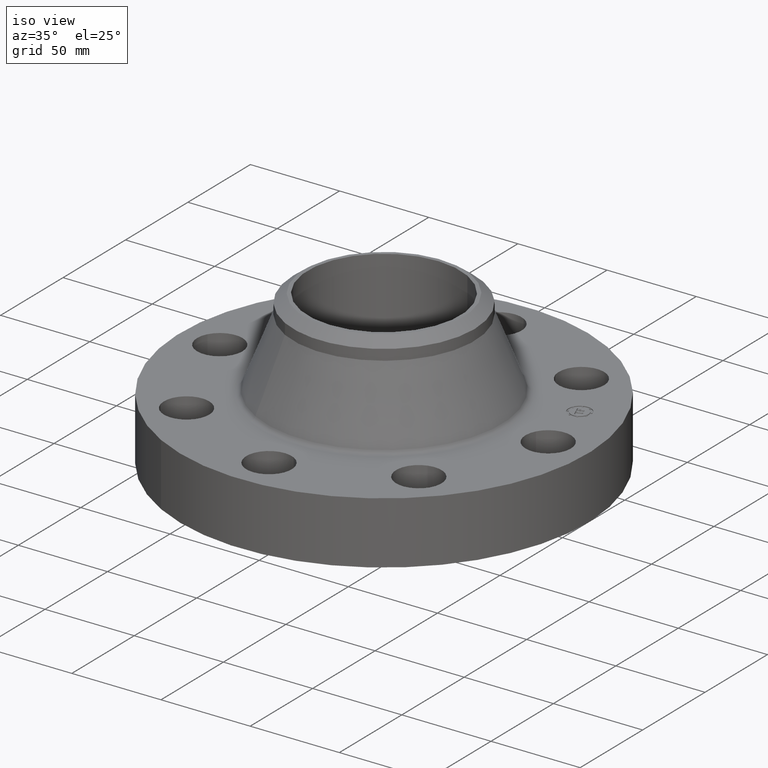
[diagram: clean part render]
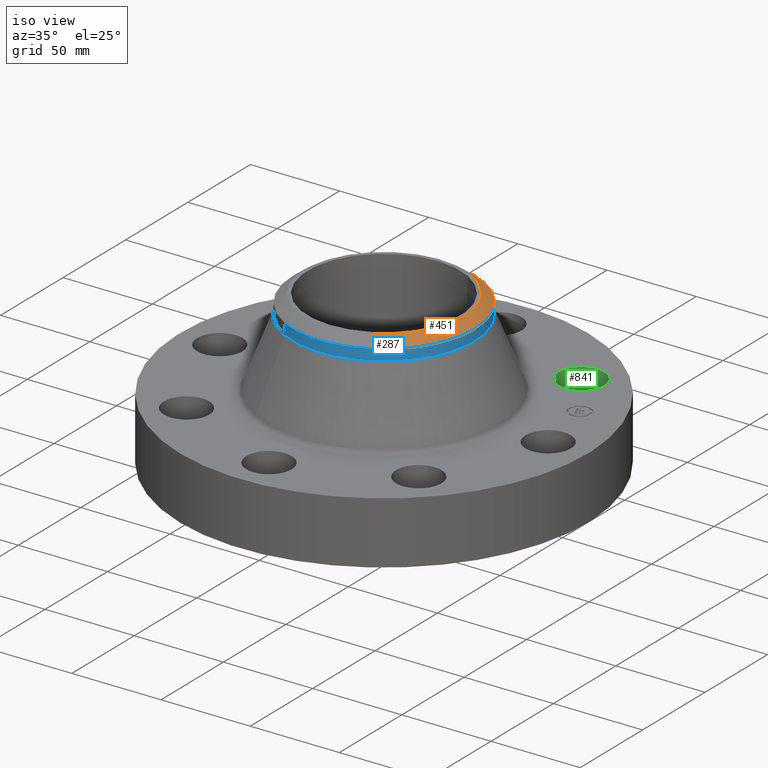
[diagram: same view with three faces highlighted in distinct colors, each labeled with its STEP entity id]
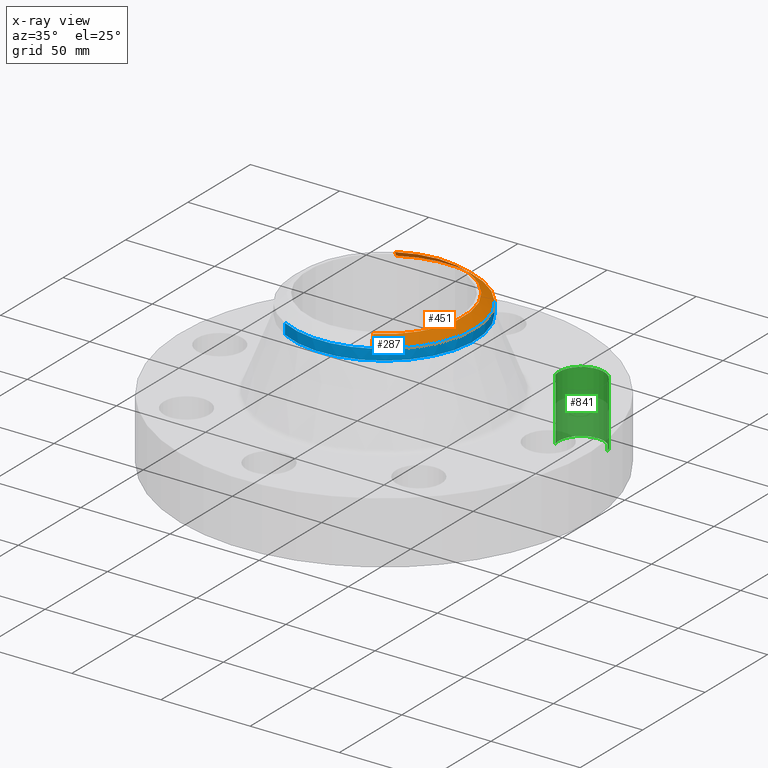
[diagram: x-ray of the same camera — body ghosted, the three highlighted faces saturated]
A machine part, iso view with three faces highlighted in distinct colors.
The next image is the same camera in x-ray (body ghosted, the three faces saturated) — at least one of them is partly hidden behind the body in this view.
Their STEP definitions:

[orange] entity #451 — the highlighted conical surface has half-angle 52.5 deg.
#270=AXIS2_PLACEMENT_3D('Circle Axis2P3D',#268,#269,$) ;
#297=AXIS2_PLACEMENT_3D('Circle Axis2P3D',#295,#296,$) ;
#311=AXIS2_PLACEMENT_3D('Cone Axis2P3D',#308,#309,#310) ;
#432=AXIS2_PLACEMENT_3D('Circle Axis2P3D',#430,#431,$) ;
#265=CARTESIAN_POINT('Vertex',(0.958851077212,1.75516512379,3.19640946571)) ;
#268=CARTESIAN_POINT('Axis2P3D Location',(0.,0.,3.19640946571)) ;
#272=CARTESIAN_POINT('Vertex',(0.958851077212,-1.75516512379,3.19640946571)) ;
#292=CARTESIAN_POINT('Vertex',(-0.958851077212,1.75516512379,3.19640946571)) ;
#295=CARTESIAN_POINT('Axis2P3D Location',(0.,0.,3.19640946571)) ;
#308=CARTESIAN_POINT('Axis2P3D Location',(0.,0.,3.38000000001)) ;
#313=CARTESIAN_POINT('Line Origine',(0.901497437779,-1.65017999101,3.28820473286)) ;
#317=CARTESIAN_POINT('Vertex',(0.844143798345,-1.54519485823,3.38000000001)) ;
#324=CARTESIAN_POINT('Vertex',(-0.844143798345,1.54519485823,3.38000000001)) ;
#327=CARTESIAN_POINT('Line Origine',(-0.901497437779,1.65017999101,3.28820473286)) ;
#430=CARTESIAN_POINT('Axis2P3D Location',(0.,0.,3.38000000001)) ;
#269=DIRECTION('Axis2P3D Direction',(0.,0.,-0.0393700787402)) ;
#296=DIRECTION('Axis2P3D Direction',(0.,0.,-0.0393700787402)) ;
#309=DIRECTION('Axis2P3D Direction',(-0.,-0.,-0.0393700787402)) ;
#310=DIRECTION('Axis2P3D XDirection',(-0.0188750212049,0.0345504945626,0.)) ;
#314=DIRECTION('Vector Direction',(0.014974561121,-0.02741075027,-0.023966985394)) ;
#328=DIRECTION('Vector Direction',(-0.014974561121,0.02741075027,-0.023966985394)) ;
#431=DIRECTION('Axis2P3D Direction',(0.,0.,-0.0393700787402)) ;
#315=VECTOR('Line Direction',#314,0.0393700787402) ;
#329=VECTOR('Line Direction',#328,0.0393700787402) ;
#445=ORIENTED_EDGE('',*,*,#331,.F.) ;
#446=ORIENTED_EDGE('',*,*,#434,.F.) ;
#447=ORIENTED_EDGE('',*,*,#319,.T.) ;
#448=ORIENTED_EDGE('',*,*,#274,.T.) ;
#449=ORIENTED_EDGE('',*,*,#299,.F.) ;
#451=ADVANCED_FACE('PartBody',(#450),#312,.T.) ;
#271=CIRCLE('generated circle',#270,2.00000000001) ;
#298=CIRCLE('generated circle',#297,2.00000000001) ;
#433=CIRCLE('generated circle',#432,1.76074015749) ;
#312=CONICAL_SURFACE('Cone',#311,1.76074015749,0.916297857297) ;
#274=EDGE_CURVE('',#273,#266,#271,.F.) ;
#299=EDGE_CURVE('',#293,#266,#298,.T.) ;
#319=EDGE_CURVE('',#318,#273,#316,.T.) ;
#331=EDGE_CURVE('',#325,#293,#330,.T.) ;
#434=EDGE_CURVE('',#318,#325,#433,.F.) ;
#444=EDGE_LOOP('',(#445,#446,#447,#448,#449)) ;
#450=FACE_OUTER_BOUND('',#444,.T.) ;
#316=LINE('Line',#313,#315) ;
#330=LINE('Line',#327,#329) ;
#266=VERTEX_POINT('',#265) ;
#273=VERTEX_POINT('',#272) ;
#293=VERTEX_POINT('',#292) ;
#318=VERTEX_POINT('',#317) ;
#325=VERTEX_POINT('',#324) ;

[blue] entity #287 — the highlighted cylindrical surface (partial cylindrical patch) has radius 50.8 mm, axis along (0, 0, -1).
#220=AXIS2_PLACEMENT_3D('Circle Axis2P3D',#218,#219,$) ;
#252=AXIS2_PLACEMENT_3D('Cylinder Axis2P3D',#249,#250,#251) ;
#270=AXIS2_PLACEMENT_3D('Circle Axis2P3D',#268,#269,$) ;
#277=AXIS2_PLACEMENT_3D('Circle Axis2P3D',#275,#276,$) ;
#215=CARTESIAN_POINT('Vertex',(0.958851077212,1.75516512379,2.96018899327)) ;
#218=CARTESIAN_POINT('Axis2P3D Location',(0.,0.,2.96018899327)) ;
#222=CARTESIAN_POINT('Vertex',(-0.958851077212,-1.75516512379,2.96018899327)) ;
#249=CARTESIAN_POINT('Axis2P3D Location',(0.,0.,1.56500000001)) ;
#254=CARTESIAN_POINT('Line Origine',(-0.958851077212,-1.75516512379,3.07829922949)) ;
#258=CARTESIAN_POINT('Vertex',(-0.958851077212,-1.75516512379,3.19640946571)) ;
#261=CARTESIAN_POINT('Line Origine',(0.958851077212,1.75516512379,3.07829922949)) ;
#265=CARTESIAN_POINT('Vertex',(0.958851077212,1.75516512379,3.19640946571)) ;
#268=CARTESIAN_POINT('Axis2P3D Location',(0.,0.,3.19640946571)) ;
#272=CARTESIAN_POINT('Vertex',(0.958851077212,-1.75516512379,3.19640946571)) ;
#275=CARTESIAN_POINT('Axis2P3D Location',(0.,0.,3.19640946571)) ;
#219=DIRECTION('Axis2P3D Direction',(0.,0.,-0.0393700787402)) ;
#250=DIRECTION('Axis2P3D Direction',(0.,0.,-0.0393700787402)) ;
#251=DIRECTION('Axis2P3D XDirection',(-0.0188750212049,-0.0345504945626,0.)) ;
#255=DIRECTION('Vector Direction',(0.,0.,-0.0393700787402)) ;
#262=DIRECTION('Vector Direction',(0.,0.,-0.0393700787402)) ;
#269=DIRECTION('Axis2P3D Direction',(0.,0.,-0.0393700787402)) ;
#276=DIRECTION('Axis2P3D Direction',(0.,0.,-0.0393700787402)) ;
#256=VECTOR('Line Direction',#255,0.0393700787402) ;
#263=VECTOR('Line Direction',#262,0.0393700787402) ;
#281=ORIENTED_EDGE('',*,*,#260,.F.) ;
#282=ORIENTED_EDGE('',*,*,#224,.F.) ;
#283=ORIENTED_EDGE('',*,*,#267,.T.) ;
#284=ORIENTED_EDGE('',*,*,#274,.F.) ;
#285=ORIENTED_EDGE('',*,*,#279,.T.) ;
#287=ADVANCED_FACE('PartBody',(#286),#253,.T.) ;
#221=CIRCLE('generated circle',#220,2.00000000001) ;
#271=CIRCLE('generated circle',#270,2.00000000001) ;
#278=CIRCLE('generated circle',#277,2.00000000001) ;
#253=CYLINDRICAL_SURFACE('generated cylinder',#252,2.00000000001) ;
#224=EDGE_CURVE('',#216,#223,#221,.T.) ;
#260=EDGE_CURVE('',#223,#259,#257,.F.) ;
#267=EDGE_CURVE('',#216,#266,#264,.F.) ;
#274=EDGE_CURVE('',#273,#266,#271,.F.) ;
#279=EDGE_CURVE('',#273,#259,#278,.T.) ;
#280=EDGE_LOOP('',(#281,#282,#283,#284,#285)) ;
#286=FACE_OUTER_BOUND('',#280,.T.) ;
#257=LINE('Line',#254,#256) ;
#264=LINE('Line',#261,#263) ;
#216=VERTEX_POINT('',#215) ;
#223=VERTEX_POINT('',#222) ;
#259=VERTEX_POINT('',#258) ;
#266=VERTEX_POINT('',#265) ;
#273=VERTEX_POINT('',#272) ;

[green] entity #841 — the highlighted cylindrical surface (edge-blend (fillet) strip) has radius 12.7 mm, axis along (0, 0, -1).
#622=AXIS2_PLACEMENT_3D('Circle Axis2P3D',#620,#621,$) ;
#814=AXIS2_PLACEMENT_3D('Cylinder Axis2P3D',#811,#812,#813) ;
#832=AXIS2_PLACEMENT_3D('Circle Axis2P3D',#830,#831,$) ;
#620=CARTESIAN_POINT('Axis2P3D Location',(2.56326208181,2.56326208181,0.)) ;
#624=CARTESIAN_POINT('Vertex',(2.08348726682,2.42249231624,0.)) ;
#626=CARTESIAN_POINT('Vertex',(3.04303689681,2.70403184738,0.)) ;
#811=CARTESIAN_POINT('Axis2P3D Location',(2.56326208181,2.56326208181,1.37606299213)) ;
#816=CARTESIAN_POINT('Line Origine',(2.08348726682,2.42249231624,0.690000000003)) ;
#820=CARTESIAN_POINT('Vertex',(2.08348726682,2.42249231624,1.38000000001)) ;
#823=CARTESIAN_POINT('Line Origine',(3.04303689681,2.70403184738,0.690000000003)) ;
#827=CARTESIAN_POINT('Vertex',(3.04303689681,2.70403184738,1.38000000001)) ;
#830=CARTESIAN_POINT('Axis2P3D Location',(2.56326208181,2.56326208181,1.38000000001)) ;
#621=DIRECTION('Axis2P3D Direction',(0.,0.,-0.0393700787402)) ;
#812=DIRECTION('Axis2P3D Direction',(0.,0.,-0.0393700787402)) ;
#813=DIRECTION('Axis2P3D XDirection',(0.0377775444876,0.0110842335096,0.)) ;
#817=DIRECTION('Vector Direction',(0.,0.,-0.0393700787402)) ;
#824=DIRECTION('Vector Direction',(0.,0.,-0.0393700787402)) ;
#831=DIRECTION('Axis2P3D Direction',(0.,0.,-0.0393700787402)) ;
#818=VECTOR('Line Direction',#817,0.0393700787402) ;
#825=VECTOR('Line Direction',#824,0.0393700787402) ;
#836=ORIENTED_EDGE('',*,*,#822,.F.) ;
#837=ORIENTED_EDGE('',*,*,#628,.T.) ;
#838=ORIENTED_EDGE('',*,*,#829,.T.) ;
#839=ORIENTED_EDGE('',*,*,#834,.F.) ;
#841=ADVANCED_FACE('PartBody',(#840),#815,.F.) ;
#623=CIRCLE('generated circle',#622,0.500000000002) ;
#833=CIRCLE('generated circle',#832,0.500000000002) ;
#815=CYLINDRICAL_SURFACE('generated cylinder',#814,0.500000000002) ;
#628=EDGE_CURVE('',#625,#627,#623,.T.) ;
#822=EDGE_CURVE('',#625,#821,#819,.F.) ;
#829=EDGE_CURVE('',#627,#828,#826,.F.) ;
#834=EDGE_CURVE('',#821,#828,#833,.T.) ;
#835=EDGE_LOOP('',(#836,#837,#838,#839)) ;
#840=FACE_OUTER_BOUND('',#835,.T.) ;
#819=LINE('Line',#816,#818) ;
#826=LINE('Line',#823,#825) ;
#625=VERTEX_POINT('',#624) ;
#627=VERTEX_POINT('',#626) ;
#821=VERTEX_POINT('',#820) ;
#828=VERTEX_POINT('',#827) ;